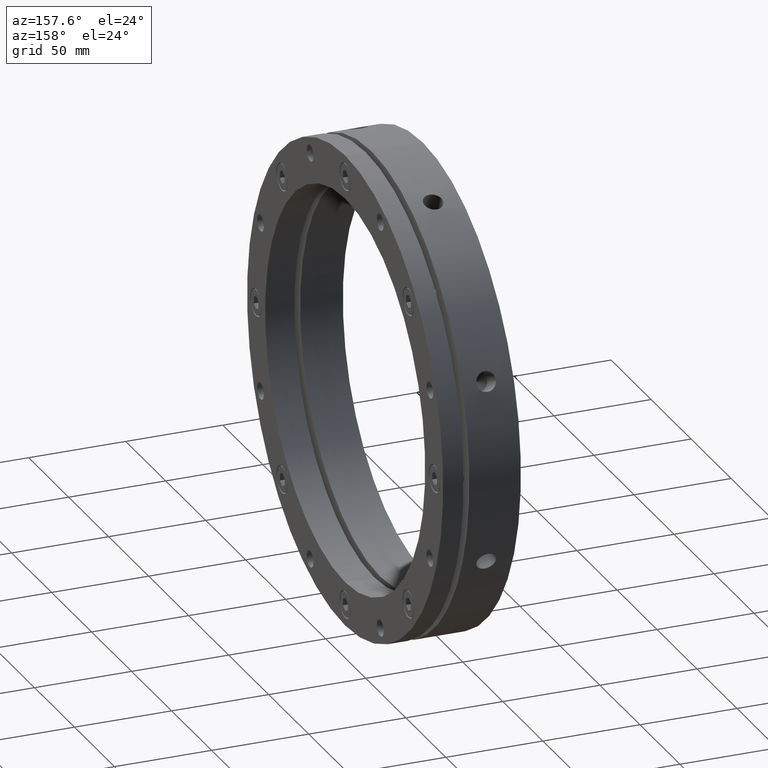
[diagram: clean part render]
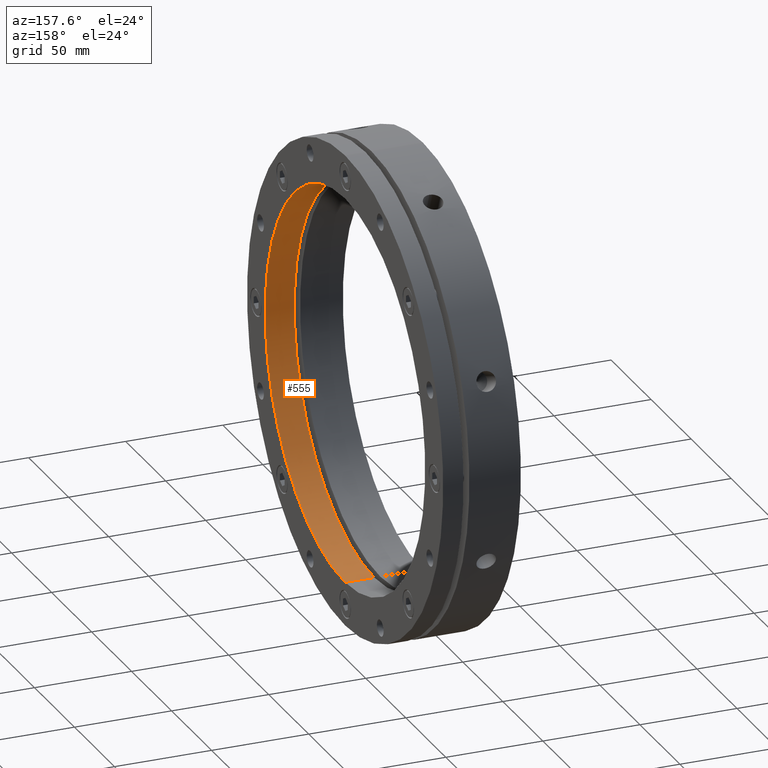
[diagram: same view with one face highlighted and labeled with its STEP entity id]
A machine part, auxiliary view. The second image highlights one B-rep face of the part: STEP entity #555.
In plain terms, the highlighted cylindrical surface (partial cylindrical patch) has radius 100 mm, axis along (1, 0, 0).
Its self-contained STEP definition (entity closure, byte-faithful):
#175 = CARTESIAN_POINT ( 'NONE',  ( 39.99999999999997900, 1.224646799147353200E-014, 100.0000000000000000 ) ) ;
#189 = VECTOR ( 'NONE', #5349, 1000.000000000000000 ) ;
#214 = CIRCLE ( 'NONE', #1610, 100.0000000000000000 ) ;
#218 = LINE ( 'NONE', #5348, #189 ) ;
#270 = CIRCLE ( 'NONE', #1611, 100.0000000000000000 ) ;
#332 = VECTOR ( 'NONE', #5343, 1000.000000000000000 ) ;
#333 = LINE ( 'NONE', #5347, #332 ) ;
#555 = ADVANCED_FACE ( 'NONE', ( #4537 ), #4526, .F. ) ;
#1465 = EDGE_LOOP ( 'NONE', ( #2217, #2261, #2221, #2260 ) ) ;
#1610 = AXIS2_PLACEMENT_3D ( 'NONE', #5359, #5360, #5361 ) ;
#1611 = AXIS2_PLACEMENT_3D ( 'NONE', #5354, #5355, #5356 ) ;
#2217 = ORIENTED_EDGE ( 'NONE', *, *, #3051, .T. ) ;
#2221 = ORIENTED_EDGE ( 'NONE', *, *, #3049, .F. ) ;
#2260 = ORIENTED_EDGE ( 'NONE', *, *, #3048, .F. ) ;
#2261 = ORIENTED_EDGE ( 'NONE', *, *, #3050, .T. ) ;
#2610 = DIRECTION ( 'NONE',  ( 0.0000000000000000000, 0.0000000000000000000, -1.000000000000000000 ) ) ;
#2617 = DIRECTION ( 'NONE',  ( 1.000000000000000000, 0.0000000000000000000, 0.0000000000000000000 ) ) ;
#2619 = CARTESIAN_POINT ( 'NONE',  ( 19.99999999999997200, 0.0000000000000000000, 0.0000000000000000000 ) ) ;
#2837 = VERTEX_POINT ( 'NONE', #4234 ) ;
#2877 = VERTEX_POINT ( 'NONE', #4270 ) ;
#2927 = VERTEX_POINT ( 'NONE', #4350 ) ;
#2941 = VERTEX_POINT ( 'NONE', #175 ) ;
#3048 = EDGE_CURVE ( 'NONE', #2837, #2877, #333, .T. ) ;
#3049 = EDGE_CURVE ( 'NONE', #2877, #2941, #270, .T. ) ;
#3050 = EDGE_CURVE ( 'NONE', #2927, #2941, #218, .T. ) ;
#3051 = EDGE_CURVE ( 'NONE', #2837, #2927, #214, .T. ) ;
#4234 = CARTESIAN_POINT ( 'NONE',  ( 24.99999999999997200, 0.0000000000000000000, -100.0000000000000000 ) ) ;
#4270 = CARTESIAN_POINT ( 'NONE',  ( 39.99999999999997900, 0.0000000000000000000, -100.0000000000000000 ) ) ;
#4350 = CARTESIAN_POINT ( 'NONE',  ( 24.99999999999997200, 1.224646799147353200E-014, 100.0000000000000000 ) ) ;
#4526 = CYLINDRICAL_SURFACE ( 'NONE', #4920, 100.0000000000000000 ) ;
#4537 = FACE_OUTER_BOUND ( 'NONE', #1465, .T. ) ;
#4920 = AXIS2_PLACEMENT_3D ( 'NONE', #2619, #2617, #2610 ) ;
#5343 = DIRECTION ( 'NONE',  ( 1.000000000000000000, 0.0000000000000000000, 0.0000000000000000000 ) ) ;
#5347 = CARTESIAN_POINT ( 'NONE',  ( 19.99999999999997200, 0.0000000000000000000, -100.0000000000000000 ) ) ;
#5348 = CARTESIAN_POINT ( 'NONE',  ( 19.99999999999997200, 1.224646799147353200E-014, 100.0000000000000000 ) ) ;
#5349 = DIRECTION ( 'NONE',  ( 1.000000000000000000, 0.0000000000000000000, 0.0000000000000000000 ) ) ;
#5354 = CARTESIAN_POINT ( 'NONE',  ( 39.99999999999997900, 0.0000000000000000000, 0.0000000000000000000 ) ) ;
#5355 = DIRECTION ( 'NONE',  ( -1.000000000000000000, -0.0000000000000000000, -0.0000000000000000000 ) ) ;
#5356 = DIRECTION ( 'NONE',  ( 0.0000000000000000000, 0.0000000000000000000, -1.000000000000000000 ) ) ;
#5359 = CARTESIAN_POINT ( 'NONE',  ( 24.99999999999997200, 0.0000000000000000000, 0.0000000000000000000 ) ) ;
#5360 = DIRECTION ( 'NONE',  ( -1.000000000000000000, -0.0000000000000000000, -0.0000000000000000000 ) ) ;
#5361 = DIRECTION ( 'NONE',  ( 0.0000000000000000000, 0.0000000000000000000, -1.000000000000000000 ) ) ;